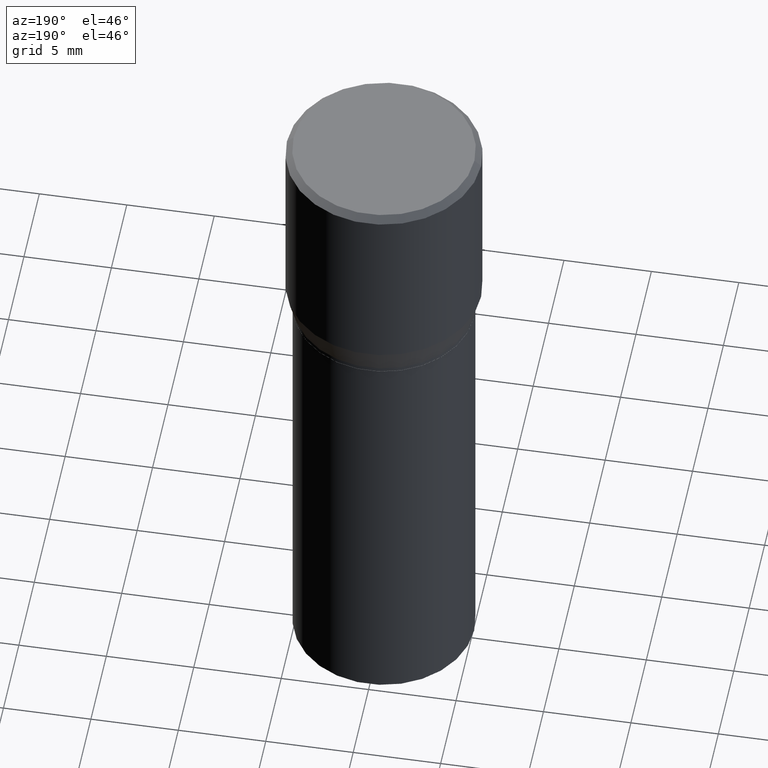
[diagram: clean part render]
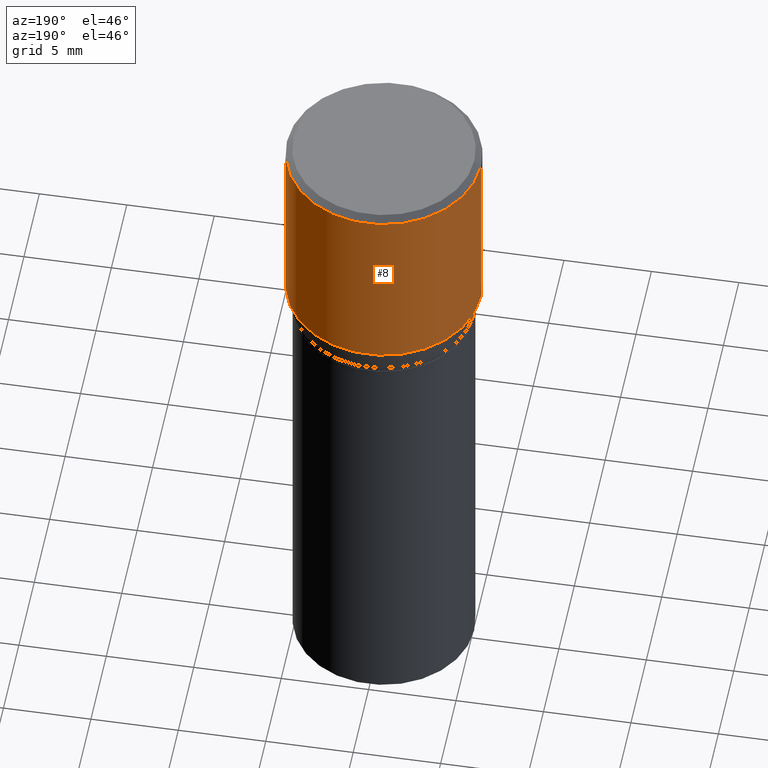
[diagram: same view with one face highlighted and labeled with its STEP entity id]
A machine part, auxiliary view. The second image highlights one B-rep face of the part: STEP entity #8.
In plain terms, the highlighted cylindrical surface (partial cylindrical patch) has radius 5.5562 mm, axis along (-0, 0, 1).
Its self-contained STEP definition (entity closure, byte-faithful):
#3 = CARTESIAN_POINT ( 'NONE',  ( 1.055448208544146876E-29, -1.506900319041867721E-15, -0.4315934048615475138 ) ) ;
#7 = ORIENTED_EDGE ( 'NONE', *, *, #168, .F. ) ;
#8 = ADVANCED_FACE ( 'NONE', ( #310 ), #357, .T. ) ;
#11 = ORIENTED_EDGE ( 'NONE', *, *, #21, .F. ) ;
#13 = CARTESIAN_POINT ( 'NONE',  ( -0.2187500000000000000, 7.746759649129616577E-16, -0.01499999999999999944 ) ) ;
#19 = ORIENTED_EDGE ( 'NONE', *, *, #464, .T. ) ;
#21 = EDGE_CURVE ( 'NONE', #299, #279, #192, .T. ) ;
#25 = CARTESIAN_POINT ( 'NONE',  ( 0.2187500000000000000, -3.034423404785738170E-15, -0.4315934048615475138 ) ) ;
#27 = VERTEX_POINT ( 'NONE', #240 ) ;
#32 = CIRCLE ( 'NONE', #365, 0.2187500000000000000 ) ;
#56 = AXIS2_PLACEMENT_3D ( 'NONE', #386, #97, #348 ) ;
#89 = ORIENTED_EDGE ( 'NONE', *, *, #135, .T. ) ;
#94 = DIRECTION ( 'NONE',  ( 1.000000000000000000, -6.982962677686266711E-15, 0.000000000000000000 ) ) ;
#97 = DIRECTION ( 'NONE',  ( -2.445468806185136597E-29, 3.491481338843145583E-15, 1.000000000000000000 ) ) ;
#135 = EDGE_CURVE ( 'NONE', #437, #27, #32, .T. ) ;
#143 = CARTESIAN_POINT ( 'NONE',  ( 0.2187500000000000000, -1.527523085743870843E-15, 1.066663669705360885E-29 ) ) ;
#145 = DIRECTION ( 'NONE',  ( -2.445468806185136597E-29, 3.491481338843145583E-15, 1.000000000000000000 ) ) ;
#148 = CARTESIAN_POINT ( 'NONE',  ( 0.2187500000000000000, -1.579895305826517922E-15, -0.01499999999999999944 ) ) ;
#168 = EDGE_CURVE ( 'NONE', #437, #299, #176, .T. ) ;
#176 = LINE ( 'NONE', #143, #418 ) ;
#192 = CIRCLE ( 'NONE', #433, 0.2187500000000000000 ) ;
#196 = EDGE_LOOP ( 'NONE', ( #89, #19, #11, #7 ) ) ;
#200 = DIRECTION ( 'NONE',  ( -2.445468806185136877E-29, 3.491481338843145188E-15, 1.000000000000000000 ) ) ;
#212 = DIRECTION ( 'NONE',  ( 1.000000000000000000, -6.982962677686265133E-15, 0.000000000000000000 ) ) ;
#240 = CARTESIAN_POINT ( 'NONE',  ( -0.2187500000000000000, 4.741191543335144142E-17, -0.4315934048615475138 ) ) ;
#272 = CARTESIAN_POINT ( 'NONE',  ( 3.668203209277705088E-31, -5.237222008264718399E-17, -0.01499999999999999944 ) ) ;
#279 = VERTEX_POINT ( 'NONE', #13 ) ;
#299 = VERTEX_POINT ( 'NONE', #148 ) ;
#308 = LINE ( 'NONE', #416, #385 ) ;
#310 = FACE_OUTER_BOUND ( 'NONE', #196, .T. ) ;
#317 = DIRECTION ( 'NONE',  ( -2.445468806185136877E-29, 3.491481338843145188E-15, 1.000000000000000000 ) ) ;
#348 = DIRECTION ( 'NONE',  ( 1.000000000000000000, -6.982962677686266711E-15, 4.876176775795935232E-29 ) ) ;
#357 = CYLINDRICAL_SURFACE ( 'NONE', #56, 0.2187500000000000000 ) ;
#365 = AXIS2_PLACEMENT_3D ( 'NONE', #3, #145, #212 ) ;
#385 = VECTOR ( 'NONE', #200, 39.37007874015748143 ) ;
#386 = CARTESIAN_POINT ( 'NONE',  ( 0.000000000000000000, 0.000000000000000000, 0.000000000000000000 ) ) ;
#416 = CARTESIAN_POINT ( 'NONE',  ( -0.2187500000000000000, 1.554312234475219157E-15, -1.076017050993260622E-29 ) ) ;
#418 = VECTOR ( 'NONE', #317, 39.37007874015748143 ) ;
#433 = AXIS2_PLACEMENT_3D ( 'NONE', #272, #462, #94 ) ;
#437 = VERTEX_POINT ( 'NONE', #25 ) ;
#462 = DIRECTION ( 'NONE',  ( -2.445468806185136597E-29, 3.491481338843145583E-15, 1.000000000000000000 ) ) ;
#464 = EDGE_CURVE ( 'NONE', #27, #279, #308, .T. ) ;